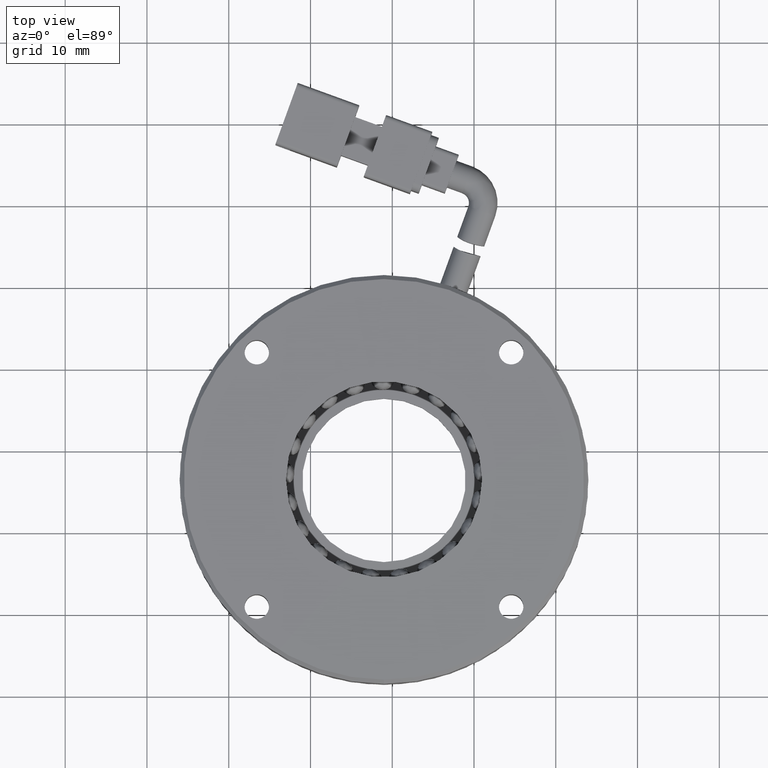
[diagram: clean part render]
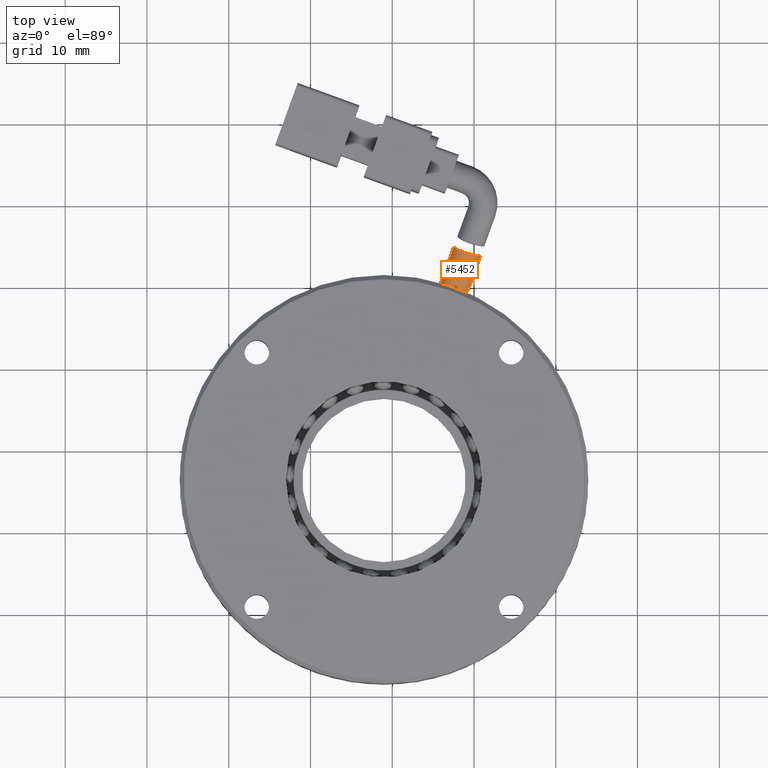
[diagram: same view with one face highlighted and labeled with its STEP entity id]
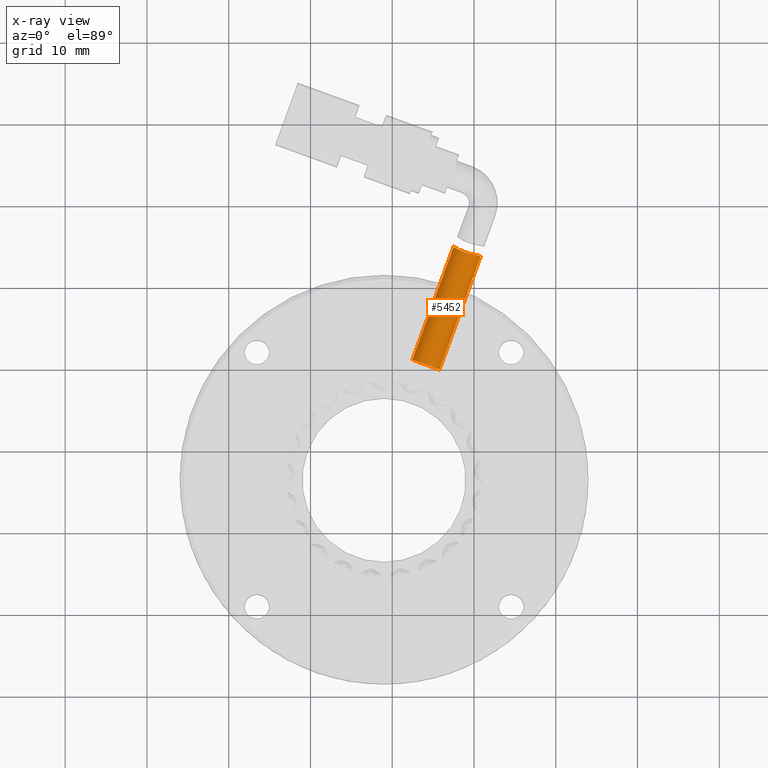
[diagram: x-ray of the same camera — body ghosted, the highlighted face saturated]
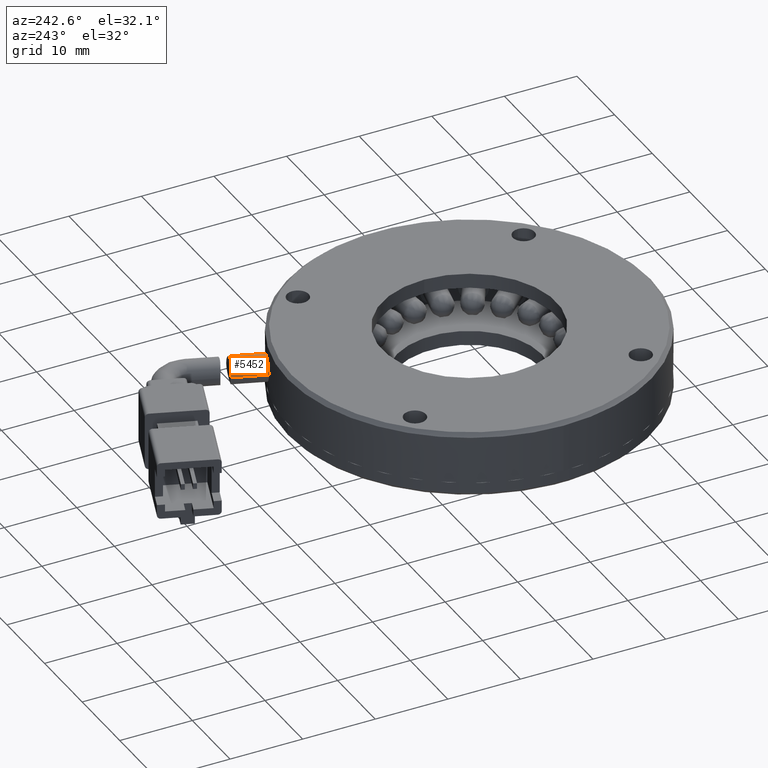
[diagram: same view with one face highlighted and labeled with its STEP entity id]
A machine part, top view. The second image highlights one B-rep face of the part: STEP entity #5452.
The next image is the same camera in x-ray: the body ghosted, the highlighted face saturated — about 0% of this face is hidden behind the body in this view.
A second angle (auxiliary view) of the same face is appended — the face is thin or edge-on in the first view.
In plain terms, the highlighted cylindrical surface (edge-blend (fillet) strip) has radius 1.75 mm, axis along (-0.342, -0.9397, 0).
Its self-contained STEP definition (entity closure, byte-faithful):
#336 = CARTESIAN_POINT ( 'NONE',  ( -111.0189140173121700, 34.23491768887712500, 1.250139874401466900 ) ) ;
#476 = DIRECTION ( 'NONE',  ( -0.3420201433256691000, -0.9396926207859084300, 1.529417067667757200E-016 ) ) ;
#720 = DIRECTION ( 'NONE',  ( -0.9396926207859079800, 0.3420201433256696600, 1.239088197126292500E-016 ) ) ;
#1427 = DIRECTION ( 'NONE',  ( -0.3420201433256690500, -0.9396926207859083200, 1.529417067667756900E-016 ) ) ;
#2285 = CARTESIAN_POINT ( 'NONE',  ( -109.2005374961209300, 33.81930540188336900, -0.2698918480532033800 ) ) ;
#2372 = CARTESIAN_POINT ( 'NONE',  ( -111.3397457245955000, 34.35198976022156400, 1.194023032864370200 ) ) ;
#3877 = EDGE_CURVE ( 'NONE', #4777, #25672, #23328, .T. ) ;
#4340 = CARTESIAN_POINT ( 'NONE',  ( -109.2797560511277500, 33.83146096842784800, 0.06582674093662056700 ) ) ;
#4422 = CARTESIAN_POINT ( 'NONE',  ( -111.7340682236524400, 34.52106016006842300, 1.028794678302408200 ) ) ;
#4777 = VERTEX_POINT ( 'NONE', #14174 ) ;
#5452 = ADVANCED_FACE ( 'NONE', ( #9328 ), #23018, .T. ) ;
#5788 = EDGE_CURVE ( 'NONE', #12832, #15005, #16962, .T. ) ;
#5926 = AXIS2_PLACEMENT_3D ( 'NONE', #16989, #476, #17822 ) ;
#6389 = CARTESIAN_POINT ( 'NONE',  ( -109.4224897515407400, 33.85434759699914100, 0.3781729575279771400 ) ) ;
#6417 = EDGE_LOOP ( 'NONE', ( #25146, #11137, #22871, #10265 ) ) ;
#6485 = CARTESIAN_POINT ( 'NONE',  ( -112.1213739388663400, 34.73294626294151800, 0.6562713164580154000 ) ) ;
#6730 = CARTESIAN_POINT ( 'NONE',  ( -107.4039464507950000, 38.72198095559711800, -0.4999999999999383300 ) ) ;
#7079 = AXIS2_PLACEMENT_3D ( 'NONE', #25124, #12945, #720 ) ;
#7687 = VECTOR ( 'NONE', #1427, 1000.000000000000100 ) ;
#8458 = CARTESIAN_POINT ( 'NONE',  ( -109.6236778037534200, 33.88893511640235800, 0.6578414883761144500 ) ) ;
#8543 = CARTESIAN_POINT ( 'NONE',  ( -112.2933518357439900, 34.84114440680726000, 0.3794830817566040000 ) ) ;
#8900 = B_SPLINE_CURVE_WITH_KNOTS ( 'NONE', 3,
 ( #24658, #10393, #2285, #16580, #4340, #18616, #6389, #20664, #8458, #22716, #10481, #24734, #12552, #336, #14607, #2372, #16666, #4422, #18707, #6485, #20751, #8543, #22800, #10567, #24826, #12628 ),
 .UNSPECIFIED., .F., .F.,
 ( 4, 2, 2, 2, 2, 2, 2, 2, 2, 2, 2, 2, 4 ),
 ( 1.821459649775647400E-017, 0.0003431607499796826500, 0.0006863214999593470800, 0.001029482249939011500, 0.001372642999918675900, 0.002058964499878036500, 0.002745285999837397000, 0.003088446749817080300, 0.003431607499796763600, 0.004117928999756157900, 0.004461089749735867700, 0.004804250499715576600, 0.005490571999675010000 ),
 .UNSPECIFIED. ) ;
#9328 = FACE_OUTER_BOUND ( 'NONE', #6417, .T. ) ;
#10265 = ORIENTED_EDGE ( 'NONE', *, *, #18542, .T. ) ;
#10313 = EDGE_CURVE ( 'NONE', #12832, #4777, #8900, .T. ) ;
#10393 = CARTESIAN_POINT ( 'NONE',  ( -109.1890043251219000, 33.81757475346436300, -0.3839471004785644000 ) ) ;
#10481 = CARTESIAN_POINT ( 'NONE',  ( -110.0570779542207700, 33.97252030121170900, 1.028905358414525800 ) ) ;
#10567 = CARTESIAN_POINT ( 'NONE',  ( -112.4520207519662600, 34.95025241990245500, -0.03921474239294014300 ) ) ;
#11137 = ORIENTED_EDGE ( 'NONE', *, *, #10313, .T. ) ;
#12552 = CARTESIAN_POINT ( 'NONE',  ( -110.6916589627795700, 34.13014291318904700, 1.249716255481387400 ) ) ;
#12628 = CARTESIAN_POINT ( 'NONE',  ( -112.4906244543239800, 34.97976340143552700, -0.4999999999999371100 ) ) ;
#12832 = VERTEX_POINT ( 'NONE', #24557 ) ;
#12945 = DIRECTION ( 'NONE',  ( 0.3420201433256691000, 0.9396926207859084300, -1.529417067667757200E-016 ) ) ;
#13669 = CARTESIAN_POINT ( 'NONE',  ( -110.6928706235456700, 39.91905145723695400, -0.4999999999999376600 ) ) ;
#14174 = CARTESIAN_POINT ( 'NONE',  ( -112.4906244543239800, 34.97976340143552700, -0.4999999999999371100 ) ) ;
#14607 = CARTESIAN_POINT ( 'NONE',  ( -111.1289966921383000, 34.27299128053640200, 1.238773471091118700 ) ) ;
#14892 = CARTESIAN_POINT ( 'NONE',  ( -114.2443493173083600, 19.92812853987899000, -0.4999999999999352700 ) ) ;
#15005 = VERTEX_POINT ( 'NONE', #14892 ) ;
#15631 = CIRCLE ( 'NONE', #7079, 1.749999999999997600 ) ;
#16580 = CARTESIAN_POINT ( 'NONE',  ( -109.2456267012087900, 33.82620425552735100, -0.04559935814051952600 ) ) ;
#16666 = CARTESIAN_POINT ( 'NONE',  ( -111.4412303593200400, 34.39312119735873800, 1.160870664720812000 ) ) ;
#16962 = LINE ( 'NONE', #6730, #22382 ) ;
#16989 = CARTESIAN_POINT ( 'NONE',  ( -109.0484085371703300, 39.32051620641703900, -0.4999999999999378800 ) ) ;
#17353 = CARTESIAN_POINT ( 'NONE',  ( -117.5332734900590500, 21.12519904151883000, -0.4999999999999346100 ) ) ;
#17822 = DIRECTION ( 'NONE',  ( -0.9396926207859087600, 0.3420201433256679900, 1.239088197126293500E-016 ) ) ;
#18542 = EDGE_CURVE ( 'NONE', #25672, #15005, #15631, .T. ) ;
#18616 = CARTESIAN_POINT ( 'NONE',  ( -109.3683730673189300, 33.84556387035354400, 0.2777361361759386700 ) ) ;
#18707 = CARTESIAN_POINT ( 'NONE',  ( -111.9070319192412800, 34.60997272584927500, 0.8997488634317991600 ) ) ;
#20664 = CARTESIAN_POINT ( 'NONE',  ( -109.5499139945003300, 33.87598654505320200, 0.5681884155261844900 ) ) ;
#20751 = CARTESIAN_POINT ( 'NONE',  ( -112.1840712790518500, 34.77134867513827000, 0.5684170094947979000 ) ) ;
#21091 = DIRECTION ( 'NONE',  ( -0.3420201433256690500, -0.9396926207859083200, 1.529417067667756900E-016 ) ) ;
#22382 = VECTOR ( 'NONE', #21091, 1000.000000000000100 ) ;
#22716 = CARTESIAN_POINT ( 'NONE',  ( -109.8643433783477300, 33.93365912835106000, 0.8989833330470027300 ) ) ;
#22800 = CARTESIAN_POINT ( 'NONE',  ( -112.3402550546988600, 34.87277913788045700, 0.2771880150466248800 ) ) ;
#22871 = ORIENTED_EDGE ( 'NONE', *, *, #3877, .T. ) ;
#23018 = CYLINDRICAL_SURFACE ( 'NONE', #5926, 1.749999999999996200 ) ;
#23328 = LINE ( 'NONE', #13669, #7687 ) ;
#24557 = CARTESIAN_POINT ( 'NONE',  ( -109.1890043251218700, 33.81757475346435600, -0.4999999999999374400 ) ) ;
#24658 = CARTESIAN_POINT ( 'NONE',  ( -109.1890043251218700, 33.81757475346435600, -0.4999999999999374400 ) ) ;
#24734 = CARTESIAN_POINT ( 'NONE',  ( -110.4685323672968600, 34.07009491102472500, 1.203361838500374400 ) ) ;
#24826 = CARTESIAN_POINT ( 'NONE',  ( -112.4906244543239900, 34.97976340143551300, -0.2678380340999108600 ) ) ;
#25124 = CARTESIAN_POINT ( 'NONE',  ( -115.8888114036837000, 20.52666379069891200, -0.4999999999999348300 ) ) ;
#25146 = ORIENTED_EDGE ( 'NONE', *, *, #5788, .F. ) ;
#25672 = VERTEX_POINT ( 'NONE', #17353 ) ;